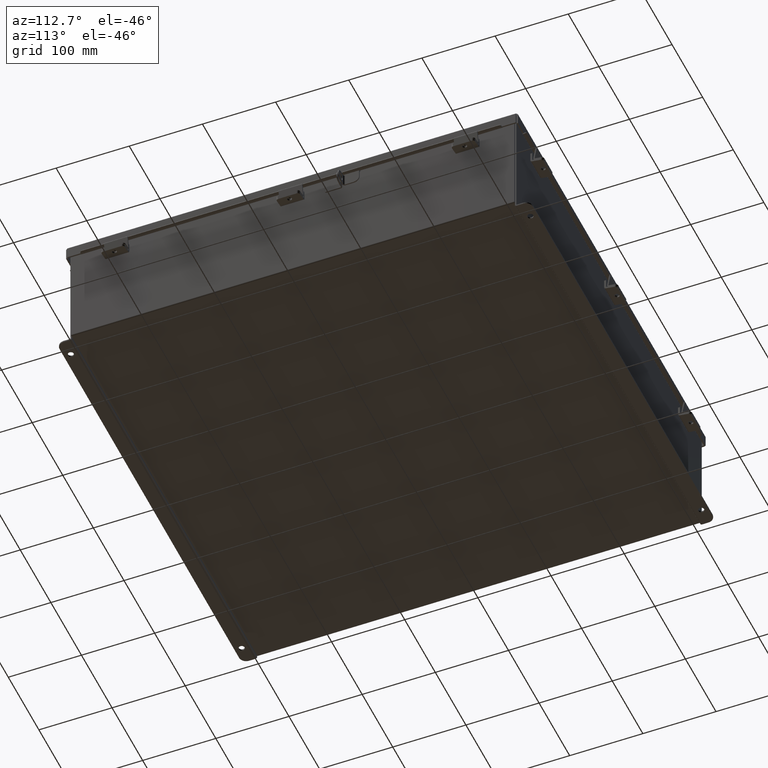
[diagram: clean part render]
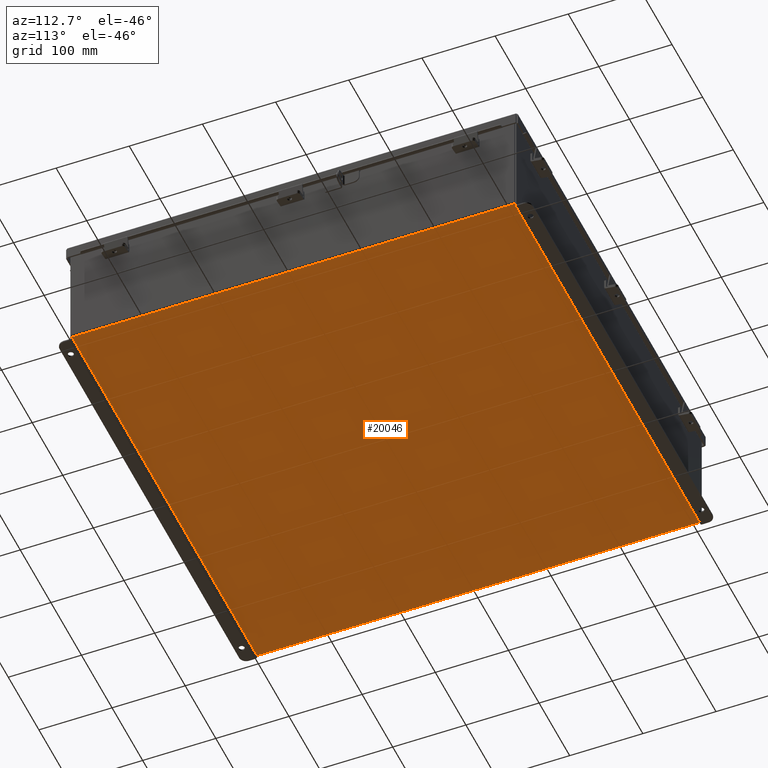
[diagram: same view with one face highlighted and labeled with its STEP entity id]
A machine part, auxiliary view. The second image highlights one B-rep face of the part: STEP entity #20046.
In plain terms, the highlighted planar face has unit normal (0, 0, -1).
Its self-contained STEP definition (entity closure, byte-faithful):
#1205 = VECTOR ( 'NONE', #10608, 39.37007874015748100 ) ;
#1328 = ORIENTED_EDGE ( 'NONE', *, *, #16361, .T. ) ;
#1539 = CARTESIAN_POINT ( 'NONE',  ( -11.91230000000000000, -11.92529999999999800, -0.07469999999999994700 ) ) ;
#1564 = LINE ( 'NONE', #4598, #16246 ) ;
#1987 = DIRECTION ( 'NONE',  ( -1.000000000000000000, 0.0000000000000000000, -0.0000000000000000000 ) ) ;
#2205 = CARTESIAN_POINT ( 'NONE',  ( 11.91230000000000000, -11.92530000000000000, -0.07470000000000000300 ) ) ;
#3721 = CARTESIAN_POINT ( 'NONE',  ( -11.91230000000000000, -11.92530000000000000, -0.07469999999999994700 ) ) ;
#4509 = DIRECTION ( 'NONE',  ( -0.0000000000000000000, -1.000000000000000000, -0.0000000000000000000 ) ) ;
#4598 = CARTESIAN_POINT ( 'NONE',  ( 11.91230000000000000, 11.92530000000000000, -0.07469999999999994700 ) ) ;
#5912 = VERTEX_POINT ( 'NONE', #2205 ) ;
#6729 = EDGE_LOOP ( 'NONE', ( #17682, #19143, #7609, #1328 ) ) ;
#7609 = ORIENTED_EDGE ( 'NONE', *, *, #8298, .F. ) ;
#7811 = LINE ( 'NONE', #3721, #12942 ) ;
#8032 = LINE ( 'NONE', #12230, #22884 ) ;
#8298 = EDGE_CURVE ( 'NONE', #9857, #5912, #8032, .T. ) ;
#9857 = VERTEX_POINT ( 'NONE', #1539 ) ;
#10608 = DIRECTION ( 'NONE',  ( -1.000000000000000000, -0.0000000000000000000, -0.0000000000000000000 ) ) ;
#11488 = PLANE ( 'NONE',  #18618 ) ;
#12230 = CARTESIAN_POINT ( 'NONE',  ( -12.00000000000000200, -11.92530000000000000, -0.07470000000000000300 ) ) ;
#12942 = VECTOR ( 'NONE', #17176, 39.37007874015748100 ) ;
#13465 = DIRECTION ( 'NONE',  ( 0.0000000000000000000, 0.0000000000000000000, -1.000000000000000000 ) ) ;
#14601 = FACE_OUTER_BOUND ( 'NONE', #6729, .T. ) ;
#15313 = LINE ( 'NONE', #20116, #1205 ) ;
#15551 = CARTESIAN_POINT ( 'NONE',  ( -11.91230000000000000, 11.92530000000000000, -0.07470000000000000300 ) ) ;
#16246 = VECTOR ( 'NONE', #4509, 39.37007874015748100 ) ;
#16361 = EDGE_CURVE ( 'NONE', #9857, #22368, #7811, .T. ) ;
#17176 = DIRECTION ( 'NONE',  ( -0.0000000000000000000, 1.000000000000000000, -0.0000000000000000000 ) ) ;
#17254 = CARTESIAN_POINT ( 'NONE',  ( 0.0000000000000000000, 0.0000000000000000000, -0.07470000000000000300 ) ) ;
#17682 = ORIENTED_EDGE ( 'NONE', *, *, #23199, .F. ) ;
#18589 = CARTESIAN_POINT ( 'NONE',  ( 11.91230000000000000, 11.92529999999999800, -0.07469999999999994700 ) ) ;
#18618 = AXIS2_PLACEMENT_3D ( 'NONE', #17254, #13465, #1987 ) ;
#19143 = ORIENTED_EDGE ( 'NONE', *, *, #21896, .T. ) ;
#19847 = VERTEX_POINT ( 'NONE', #18589 ) ;
#20046 = ADVANCED_FACE ( 'NONE', ( #14601 ), #11488, .T. ) ;
#20116 = CARTESIAN_POINT ( 'NONE',  ( -12.00000000000000200, 11.92530000000000000, -0.07470000000000000300 ) ) ;
#21896 = EDGE_CURVE ( 'NONE', #19847, #5912, #1564, .T. ) ;
#22368 = VERTEX_POINT ( 'NONE', #15551 ) ;
#22884 = VECTOR ( 'NONE', #23795, 39.37007874015748100 ) ;
#23199 = EDGE_CURVE ( 'NONE', #19847, #22368, #15313, .T. ) ;
#23795 = DIRECTION ( 'NONE',  ( 1.000000000000000000, 0.0000000000000000000, 0.0000000000000000000 ) ) ;